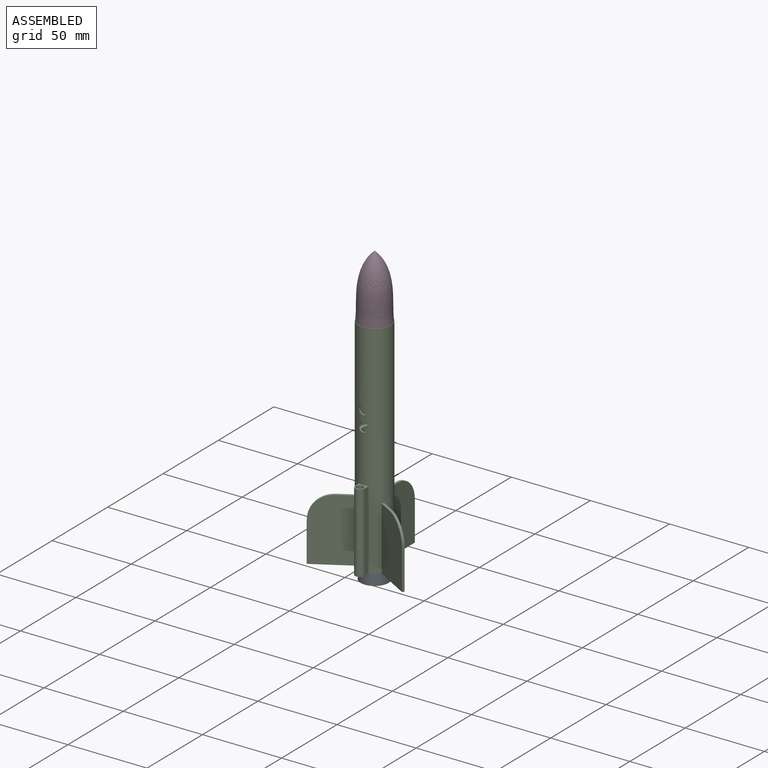
[diagram: assembled view]
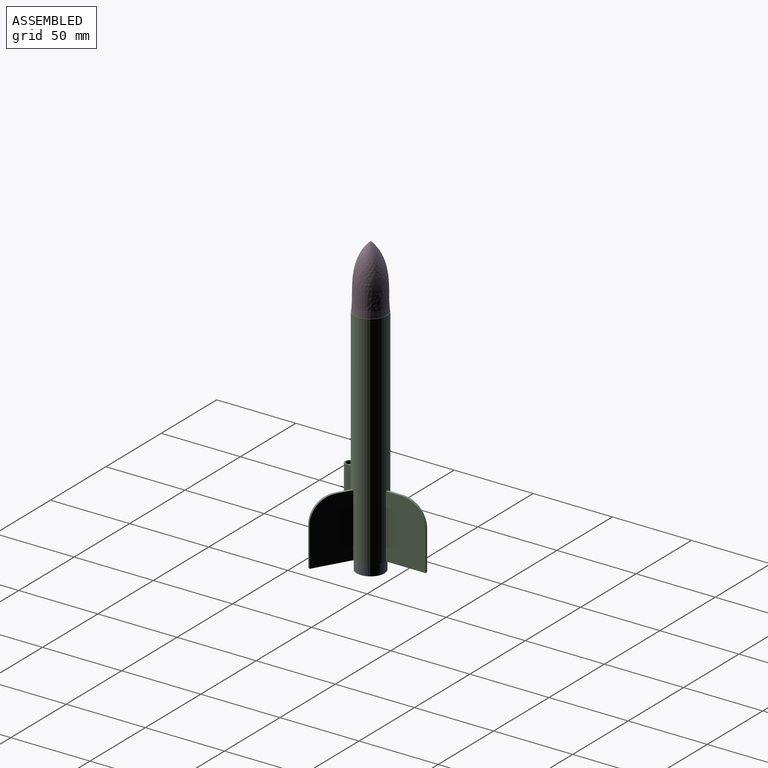
[diagram: assembled view, second angle]
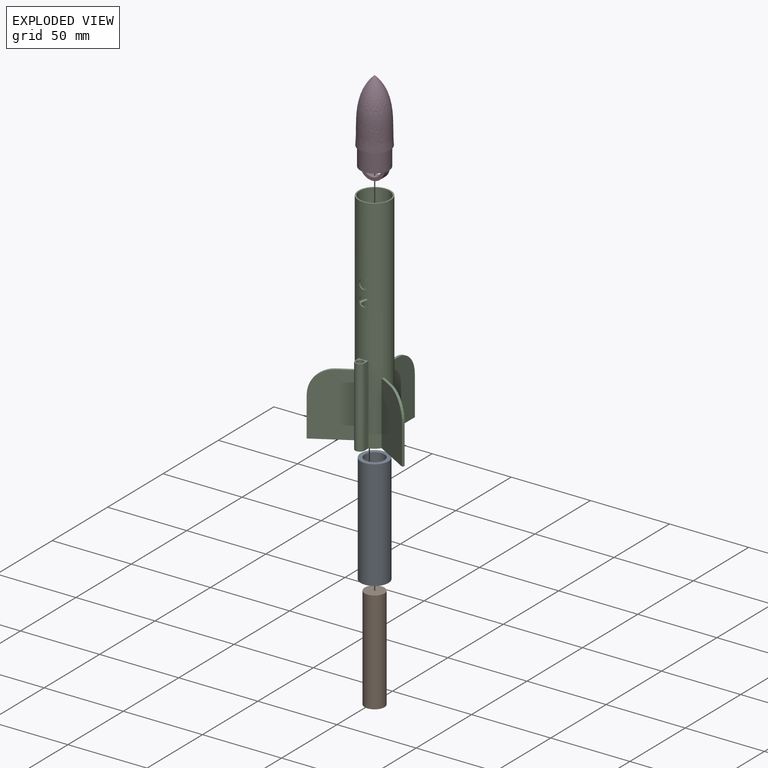
[diagram: exploded view]
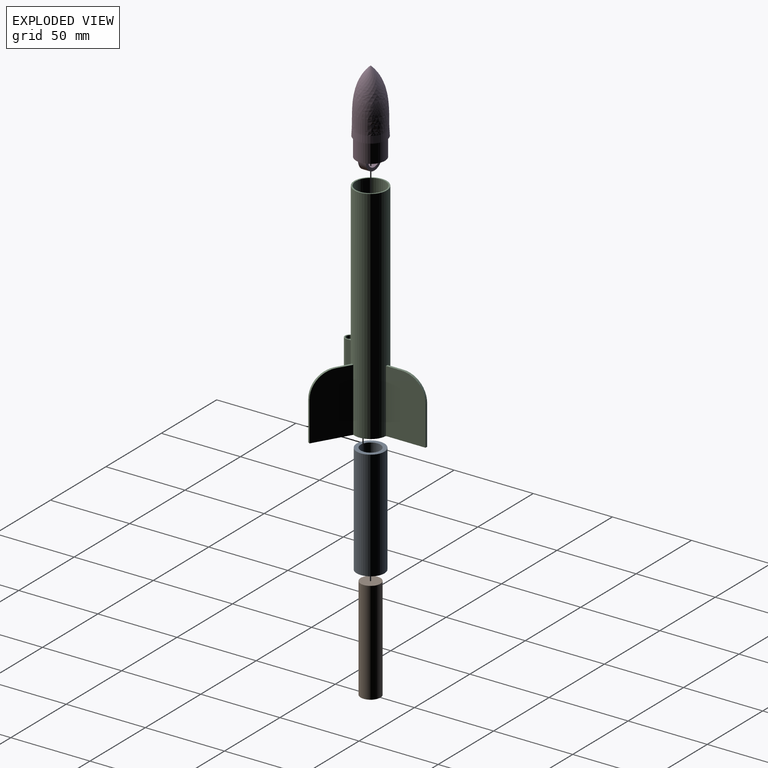
[diagram: exploded view, second angle]
ASSEMBLY  parts=4 mates=3
PART A: 4 faces, bbox 17.5x17.5x69.5 mm
  f0: cylinder r=6.25mm len=69.5mm, axis (0,0,-1), area 2729.3mm2, adj f2,f3
  f1: cylinder r=8.75mm len=69.5mm, axis (0,0,-1), area 3821mm2, adj f2,f3
  f2: plane 17.5x17.5mm, normal (0,0,1), area 117.8mm2, adj f0,f1
  f3: plane 17.5x17.5mm, normal (0,0,-1), area 117.8mm2, adj f0,f1
PART B: 6 faces, bbox 12.5x12.5x65 mm
  f0: cylinder r=2mm len=56mm, axis (0,0,-1), area 703.7mm2, adj f4,f5
  f1: cylinder r=6.25mm len=65mm, axis (0,0,-1), area 2552.5mm2, adj f2,f3
  f2: plane 12.5x12.5mm, normal (0,0,1), area 122.7mm2, adj f1
  f3: plane 12.5x12.5mm, normal (0,0,-1), area 72.5mm2, adj f1,f4
  f4: cone r=4mm half-angle=45deg, axis (0,0,-1), area 53.3mm2, adj f0,f3
  f5: plane 4x4mm, normal (0,0,-1), area 12.6mm2, adj f0
PART C: 30 faces, bbox 61.8x53.5x140 mm
  f0: cylinder r=10.25mm len=140mm, axis (0,0,-1), area 8474.6mm2, adj f3,f4,f5,f7,f8,f10,f11,f12
  f1: cylinder r=9.38mm len=63mm, axis (0,0,-1), area 3653.7mm2, adj f3,f23,f25,f26
  f2: cylinder r=9.38mm len=62mm, axis (0,0,-1), area 3652.1mm2, adj f4,f24
  f3: plane 20.5x20.5mm, normal (0,0,1), area 53.9mm2, adj f0,f1
  f4: plane 61.76x53.48mm, normal (0,0,-1), area 183.5mm2, adj f0,f2,f5,f6,f7,f9,f11,f12
  f5: plane 40x25mm, normal (1,0,0), area 951.7mm2, adj f0,f4,f6,f8,f29
  f6: plane 25x1.5mm, normal (0,1,0), area 37.5mm2, adj f4,f5,f7,f29
  f7: plane 40x25mm, normal (-1,0,0), area 951.7mm2, adj f0,f4,f6,f8,f29
  f8: plane 10x1.5mm, normal (0,0,1), area 15mm2, adj f0,f5,f7,f29
  f9: plane 25x1.3mm, normal (0.87,-0.5,0), area 37.5mm2, adj f4,f11,f12,f27
  f10: plane 9.41x6.3mm, normal (0,0,1), area 15mm2, adj f0,f11,f12,f27
  f11: plane 40x21.65mm, normal (0.5,0.87,0), area 951.7mm2, adj f0,f4,f9,f10,f27
  f12: plane 40x21.65mm, normal (-0.5,-0.87,0), area 951.7mm2, adj f0,f4,f9,f10,f27
  f13: cylinder r=2.25mm len=50mm, axis (0,0,-1), area 706.9mm2, adj f4,f17
  f14: cylinder r=3mm len=50mm, axis (0,0,-1), area 471.2mm2, adj f4,f15,f16,f17
  f15: plane 50x3.45mm, normal (1,0,0), area 172.4mm2, adj f0,f4,f14,f17
  f16: plane 50x3.45mm, normal (-1,0,0), area 172.4mm2, adj f0,f4,f14,f17
  f17: plane 6.45x6mm, normal (0,0,1), area 17.1mm2, adj f0,f13,f14,f15,f16
  f18: plane 40x21.65mm, normal (-0.5,0.87,0), area 951.7mm2, adj f0,f4,f19,f21,f28
  f19: plane 25x1.3mm, normal (-0.87,-0.5,0), area 37.5mm2, adj f4,f18,f20,f28
  f20: plane 40x21.65mm, normal (0.5,-0.87,0), area 951.7mm2, adj f0,f4,f19,f21,f28
  f21: plane 9.41x6.3mm, normal (0,0,1), area 15mm2, adj f0,f18,f20,f28
  f22: cylinder r=7.5mm len=15mm, axis (0,0,-1), area 706.9mm2, adj f23,f24
  f23: plane 18.75x18.75mm, normal (0,0,1), area 99.4mm2, adj f1,f22
  f24: plane 18.75x18.75mm, normal (0,0,-1), area 99.4mm2, adj f2,f22
  f25: cylinder r=3mm len=6mm, axis (0,1,0), area 16.9mm2, adj f0,f1
  f26: cylinder r=3mm len=6mm, axis (0,1,0), area 16.9mm2, adj f0,f1
  f27: cylinder r=15mm len=15mm, axis (-0.5,-0.87,0), area 35.3mm2, adj f9,f10,f11,f12
  f28: cylinder r=15mm len=15mm, axis (-0.5,0.87,0), area 35.3mm2, adj f18,f19,f20,f21
  f29: cylinder r=15mm len=15mm, axis (1,0,0), area 35.3mm2, adj f5,f6,f7,f8
PART D: 12 faces, bbox 53.5x53.5x92.8 mm
  f0: cylinder r=9.12mm len=18.25mm, axis (0,0,-1), area 688mm2, adj f1,f3
  f1: plane 20x20mm, normal (0,0,-1), area 52.6mm2, adj f0,f2
  f2: revolved ~40x20mm, area 2041.8mm2, adj f1
  f3: plane 18.25x18.25mm, normal (0,0,-1), area 241.6mm2, adj f0,f4,f5,f6,f7
  f4: cylinder r=5.69mm len=11.36mm, axis (0,1,0), area 85.5mm2, adj f3,f6,f7
  f5: cylinder r=7.69mm len=15.36mm, axis (0,1,0), area 116.9mm2, adj f3,f6,f7
  f6: plane 15.36x7.3mm, normal (0,-1,0), area 40.5mm2, adj f3,f4,f5
  f7: plane 15.36x7.3mm, normal (0,1,0), area 40.5mm2, adj f3,f4,f5
  f8: revolved ~16.76x8.38mm, area 0mm2, adj f9
  f9: plane 50.28x50.28mm, normal (0,0,-1), area 25.8mm2, adj f8,f10
  f10: cylinder r=7.88mm len=15.75mm, axis (0,0,-1), area 593.8mm2, adj f9,f11
  f11: plane 15.75x15.75mm, normal (0,0,-1), area 194.8mm2, adj f10
PLACE A t=(-44.53,-23.86,-33.43)mm
PLACE B t=(-44.53,-23.86,-35.43)mm
PLACE C t=(-44.53,-23.86,-25.93)mm
PLACE D t=(-44.53,-23.86,114.07)mm
MATE fastened A.f0 <-> B.f0  axis (0,0,-1) through (-44.53,-23.86,-33.43)mm
MATE fastened C.f1 <-> A.f0  axis (0,0,-1) through (-44.53,-23.86,36.07)mm
MATE fastened D.f0 <-> C.f0  axis (0,0,-1) through (-44.53,-23.86,114.07)mm
